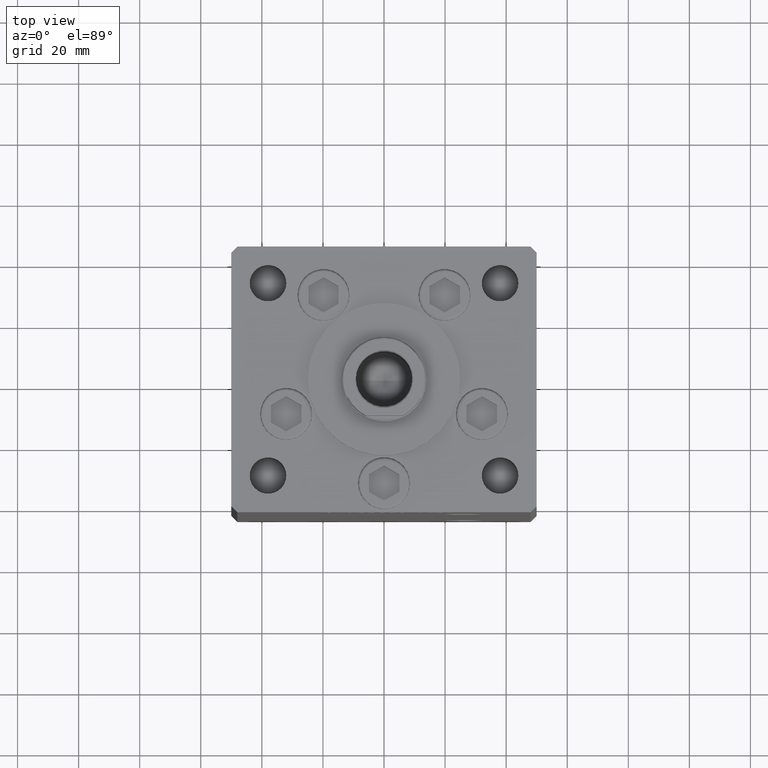
[diagram: clean part render]
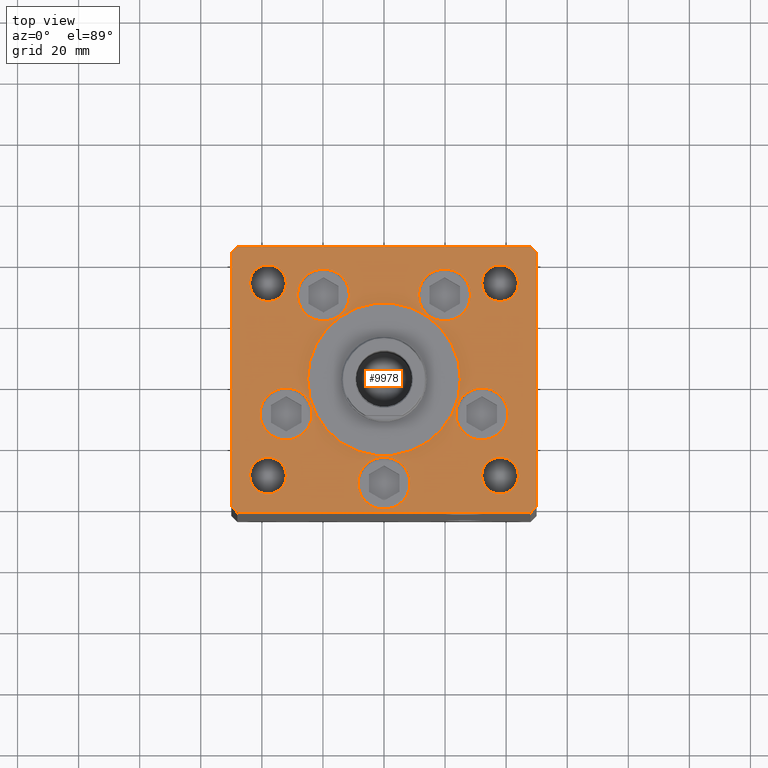
[diagram: same view with one face highlighted and labeled with its STEP entity id]
A machine part, top view. The second image highlights one B-rep face of the part: STEP entity #9978.
In plain terms, the highlighted planar face has unit normal (0, 0, 1).
Its self-contained STEP definition (entity closure, byte-faithful):
#108 = DIRECTION ( 'NONE',  ( 1.000000000000000000, 0.000000000000000000, 0.000000000000000000 ) ) ;
#701 = EDGE_LOOP ( 'NONE', ( #6994, #16196 ) ) ;
#1276 = CIRCLE ( 'NONE', #39207, 8.500000000000000000 ) ;
#1460 = ORIENTED_EDGE ( 'NONE', *, *, #31414, .F. ) ;
#2448 = ORIENTED_EDGE ( 'NONE', *, *, #37866, .T. ) ;
#2465 = FACE_BOUND ( 'NONE', #11517, .T. ) ;
#2912 = VERTEX_POINT ( 'NONE', #38061 ) ;
#2942 = ORIENTED_EDGE ( 'NONE', *, *, #5826, .T. ) ;
#3421 = CARTESIAN_POINT ( 'NONE',  ( 50.00000000000000000, 41.50000000000000711, 0.000000000000000000 ) ) ;
#3626 = CIRCLE ( 'NONE', #35651, 6.000000000000005329 ) ;
#4024 = CIRCLE ( 'NONE', #29332, 8.500000000000000000 ) ;
#4028 = DIRECTION ( 'NONE',  ( -0.000000000000000000, 0.000000000000000000, 1.000000000000000000 ) ) ;
#4533 = DIRECTION ( 'NONE',  ( -0.000000000000000000, -0.000000000000000000, -1.000000000000000000 ) ) ;
#4743 = DIRECTION ( 'NONE',  ( 1.000000000000000000, 0.000000000000000000, 0.000000000000000000 ) ) ;
#5074 = VECTOR ( 'NONE', #52048, 1000.000000000000114 ) ;
#5372 = ORIENTED_EDGE ( 'NONE', *, *, #44791, .F. ) ;
#5439 = CIRCLE ( 'NONE', #25660, 8.500000000000000000 ) ;
#5826 = EDGE_CURVE ( 'NONE', #22163, #49235, #34421, .T. ) ;
#5930 = AXIS2_PLACEMENT_3D ( 'NONE', #32011, #4028, #19857 ) ;
#6026 = CARTESIAN_POINT ( 'NONE',  ( -38.00000000000000000, 31.50000000000000000, 0.000000000000000000 ) ) ;
#6219 = CIRCLE ( 'NONE', #50067, 5.999999999999998224 ) ;
#6373 = ORIENTED_EDGE ( 'NONE', *, *, #9799, .T. ) ;
#6400 = FACE_BOUND ( 'NONE', #19240, .T. ) ;
#6436 = CARTESIAN_POINT ( 'NONE',  ( 32.00000000000000000, -31.50000000000000711, 0.000000000000000000 ) ) ;
#6474 = DIRECTION ( 'NONE',  ( 0.000000000000000000, 0.000000000000000000, 1.000000000000000000 ) ) ;
#6530 = CARTESIAN_POINT ( 'NONE',  ( 44.00000000000001421, -31.50000000000000711, 0.000000000000000000 ) ) ;
#6722 = EDGE_CURVE ( 'NONE', #13387, #8736, #42908, .T. ) ;
#6925 = FACE_BOUND ( 'NONE', #9678, .T. ) ;
#6994 = ORIENTED_EDGE ( 'NONE', *, *, #25311, .F. ) ;
#7424 = CIRCLE ( 'NONE', #37761, 8.500000000000000000 ) ;
#7637 = EDGE_CURVE ( 'NONE', #28035, #17375, #22705, .T. ) ;
#7825 = VECTOR ( 'NONE', #29439, 1000.000000000000000 ) ;
#8310 = CARTESIAN_POINT ( 'NONE',  ( -50.00000000000000711, 41.49999999999999289, 0.000000000000000000 ) ) ;
#8346 = EDGE_LOOP ( 'NONE', ( #40717, #22495 ) ) ;
#8496 = ORIENTED_EDGE ( 'NONE', *, *, #14651, .F. ) ;
#8568 = CARTESIAN_POINT ( 'NONE',  ( 0.000000000000000000, -6.938893903907228378E-15, 0.000000000000000000 ) ) ;
#8736 = VERTEX_POINT ( 'NONE', #36928 ) ;
#9074 = DIRECTION ( 'NONE',  ( 1.000000000000000000, 0.000000000000000000, 0.000000000000000000 ) ) ;
#9678 = EDGE_LOOP ( 'NONE', ( #6373, #38313 ) ) ;
#9772 = LINE ( 'NONE', #17449, #11536 ) ;
#9799 = EDGE_CURVE ( 'NONE', #32856, #36629, #42174, .T. ) ;
#9826 = EDGE_CURVE ( 'NONE', #11920, #26307, #28701, .T. ) ;
#9914 = DIRECTION ( 'NONE',  ( 0.7071067811865487940, -0.7071067811865463515, 0.000000000000000000 ) ) ;
#9963 = DIRECTION ( 'NONE',  ( 1.000000000000000000, 0.000000000000000000, 0.000000000000000000 ) ) ;
#9978 = ADVANCED_FACE ( 'NONE', ( #6400, #26204, #42309, #22511, #2465, #34665, #6925, #47557, #14849, #43880, #19067 ), #19589, .T. ) ;
#10143 = VERTEX_POINT ( 'NONE', #21655 ) ;
#10398 = CARTESIAN_POINT ( 'NONE',  ( 38.00000000000000000, 31.50000000000000000, 0.000000000000000000 ) ) ;
#10760 = EDGE_CURVE ( 'NONE', #37668, #37167, #31488, .T. ) ;
#10815 = CARTESIAN_POINT ( 'NONE',  ( -44.00000000000000000, 31.50000000000000000, 0.000000000000000000 ) ) ;
#11062 = VERTEX_POINT ( 'NONE', #23752 ) ;
#11092 = CARTESIAN_POINT ( 'NONE',  ( -50.00000000000000000, -41.50000000000004263, 0.000000000000000000 ) ) ;
#11199 = VERTEX_POINT ( 'NONE', #36174 ) ;
#11229 = EDGE_CURVE ( 'NONE', #11261, #11199, #50636, .T. ) ;
#11261 = VERTEX_POINT ( 'NONE', #25058 ) ;
#11371 = ORIENTED_EDGE ( 'NONE', *, *, #29478, .T. ) ;
#11517 = EDGE_LOOP ( 'NONE', ( #21766, #23364 ) ) ;
#11536 = VECTOR ( 'NONE', #45169, 1000.000000000000000 ) ;
#11645 = AXIS2_PLACEMENT_3D ( 'NONE', #50107, #46936, #42988 ) ;
#11920 = VERTEX_POINT ( 'NONE', #35809 ) ;
#12499 = CARTESIAN_POINT ( 'NONE',  ( 40.55550741379015989, -11.33333333333332860, 0.000000000000000000 ) ) ;
#12968 = ORIENTED_EDGE ( 'NONE', *, *, #10760, .T. ) ;
#13387 = VERTEX_POINT ( 'NONE', #48866 ) ;
#13474 = DIRECTION ( 'NONE',  ( -1.000000000000000000, 0.000000000000000000, 0.000000000000000000 ) ) ;
#13576 = DIRECTION ( 'NONE',  ( 0.000000000000000000, 0.000000000000000000, 1.000000000000000000 ) ) ;
#13808 = AXIS2_PLACEMENT_3D ( 'NONE', #29530, #45879, #4743 ) ;
#13876 = EDGE_CURVE ( 'NONE', #11199, #11261, #16296, .T. ) ;
#13915 = EDGE_CURVE ( 'NONE', #44710, #48900, #43253, .T. ) ;
#13941 = AXIS2_PLACEMENT_3D ( 'NONE', #6026, #22128, #38236 ) ;
#14559 = ORIENTED_EDGE ( 'NONE', *, *, #28138, .F. ) ;
#14585 = ORIENTED_EDGE ( 'NONE', *, *, #29670, .F. ) ;
#14651 = EDGE_CURVE ( 'NONE', #26307, #11920, #3626, .T. ) ;
#14699 = ORIENTED_EDGE ( 'NONE', *, *, #22379, .F. ) ;
#14849 = FACE_BOUND ( 'NONE', #37100, .T. ) ;
#15021 = EDGE_LOOP ( 'NONE', ( #5372, #14699 ) ) ;
#15093 = VECTOR ( 'NONE', #19087, 1000.000000000000000 ) ;
#15204 = AXIS2_PLACEMENT_3D ( 'NONE', #24920, #32594, #45239 ) ;
#15362 = EDGE_CURVE ( 'NONE', #15480, #11062, #43965, .T. ) ;
#15443 = CARTESIAN_POINT ( 'NONE',  ( 50.00000000000000000, -41.49999999999992895, 0.000000000000000000 ) ) ;
#15480 = VERTEX_POINT ( 'NONE', #41222 ) ;
#15588 = DIRECTION ( 'NONE',  ( 1.000000000000000000, 0.000000000000000000, 0.000000000000000000 ) ) ;
#16196 = ORIENTED_EDGE ( 'NONE', *, *, #37965, .F. ) ;
#16296 = CIRCLE ( 'NONE', #51637, 25.00000000000000000 ) ;
#16494 = DIRECTION ( 'NONE',  ( -0.000000000000000000, -0.000000000000000000, -1.000000000000000000 ) ) ;
#17016 = DIRECTION ( 'NONE',  ( -1.000000000000000000, 0.000000000000000000, 0.000000000000000000 ) ) ;
#17038 = DIRECTION ( 'NONE',  ( 1.000000000000000000, 0.000000000000000000, 0.000000000000000000 ) ) ;
#17375 = VERTEX_POINT ( 'NONE', #34447 ) ;
#17449 = CARTESIAN_POINT ( 'NONE',  ( 50.00000000000000000, -41.49999999999992895, 0.000000000000000000 ) ) ;
#17683 = CARTESIAN_POINT ( 'NONE',  ( 38.00000000000000000, 31.50000000000000000, 0.000000000000000000 ) ) ;
#17973 = ORIENTED_EDGE ( 'NONE', *, *, #19992, .T. ) ;
#18076 = LINE ( 'NONE', #49224, #7825 ) ;
#19013 = DIRECTION ( 'NONE',  ( 0.000000000000000000, 0.000000000000000000, 1.000000000000000000 ) ) ;
#19067 = FACE_BOUND ( 'NONE', #8346, .T. ) ;
#19087 = DIRECTION ( 'NONE',  ( 8.360113137237620037E-17, -1.000000000000000000, 0.000000000000000000 ) ) ;
#19106 = DIRECTION ( 'NONE',  ( 0.000000000000000000, 0.000000000000000000, 1.000000000000000000 ) ) ;
#19240 = EDGE_LOOP ( 'NONE', ( #46581, #33663 ) ) ;
#19387 = CARTESIAN_POINT ( 'NONE',  ( -8.500000000000000000, -34.00000000000000000, 0.000000000000000000 ) ) ;
#19513 = DIRECTION ( 'NONE',  ( -0.7071067811865512365, 0.7071067811865439090, 0.000000000000000000 ) ) ;
#19589 = PLANE ( 'NONE',  #5930 ) ;
#19604 = CIRCLE ( 'NONE', #22117, 6.000000000000005329 ) ;
#19857 = DIRECTION ( 'NONE',  ( 1.000000000000000000, 0.000000000000000000, 0.000000000000000000 ) ) ;
#19992 = EDGE_CURVE ( 'NONE', #20252, #22163, #18076, .T. ) ;
#20252 = VERTEX_POINT ( 'NONE', #42024 ) ;
#20563 = LINE ( 'NONE', #3421, #40857 ) ;
#20710 = AXIS2_PLACEMENT_3D ( 'NONE', #28644, #36053, #28124 ) ;
#20822 = VERTEX_POINT ( 'NONE', #19387 ) ;
#21041 = DIRECTION ( 'NONE',  ( 1.000000000000000000, 0.000000000000000000, 0.000000000000000000 ) ) ;
#21291 = DIRECTION ( 'NONE',  ( 0.000000000000000000, 0.000000000000000000, 1.000000000000000000 ) ) ;
#21655 = CARTESIAN_POINT ( 'NONE',  ( 50.00000000000000000, 41.50000000000000711, 0.000000000000000000 ) ) ;
#21698 = CARTESIAN_POINT ( 'NONE',  ( 47.99999999999999289, 43.50000000000000000, 0.000000000000000000 ) ) ;
#21766 = ORIENTED_EDGE ( 'NONE', *, *, #50801, .F. ) ;
#21896 = EDGE_LOOP ( 'NONE', ( #41309, #14585 ) ) ;
#21903 = EDGE_CURVE ( 'NONE', #2912, #37668, #49508, .T. ) ;
#21940 = AXIS2_PLACEMENT_3D ( 'NONE', #33365, #37325, #41278 ) ;
#22059 = CARTESIAN_POINT ( 'NONE',  ( -50.00000000000000000, -41.50000000000004263, 0.000000000000000000 ) ) ;
#22117 = AXIS2_PLACEMENT_3D ( 'NONE', #25354, #4533, #13474 ) ;
#22128 = DIRECTION ( 'NONE',  ( -0.000000000000000000, -0.000000000000000000, -1.000000000000000000 ) ) ;
#22163 = VERTEX_POINT ( 'NONE', #8310 ) ;
#22321 = LINE ( 'NONE', #47375, #24207 ) ;
#22341 = CARTESIAN_POINT ( 'NONE',  ( -32.00000000000000000, -31.50000000000000711, 0.000000000000000000 ) ) ;
#22379 = EDGE_CURVE ( 'NONE', #39570, #38974, #50031, .T. ) ;
#22495 = ORIENTED_EDGE ( 'NONE', *, *, #13915, .T. ) ;
#22511 = FACE_BOUND ( 'NONE', #701, .T. ) ;
#22705 = CIRCLE ( 'NONE', #42938, 5.999999999999998224 ) ;
#23364 = ORIENTED_EDGE ( 'NONE', *, *, #43796, .F. ) ;
#23513 = ORIENTED_EDGE ( 'NONE', *, *, #9826, .F. ) ;
#23720 = AXIS2_PLACEMENT_3D ( 'NONE', #47566, #27519, #43626 ) ;
#23752 = CARTESIAN_POINT ( 'NONE',  ( -40.55550741379015989, -11.33333333333332682, 0.000000000000000000 ) ) ;
#23940 = EDGE_CURVE ( 'NONE', #48900, #44710, #19604, .T. ) ;
#24207 = VECTOR ( 'NONE', #35257, 1000.000000000000000 ) ;
#24692 = AXIS2_PLACEMENT_3D ( 'NONE', #36821, #16494, #17016 ) ;
#24920 = CARTESIAN_POINT ( 'NONE',  ( -38.00000000000000000, 31.50000000000000000, 0.000000000000000000 ) ) ;
#25058 = CARTESIAN_POINT ( 'NONE',  ( -25.00000000000000000, -6.938893903907228378E-15, 0.000000000000000000 ) ) ;
#25071 = VECTOR ( 'NONE', #9914, 1000.000000000000000 ) ;
#25155 = ORIENTED_EDGE ( 'NONE', *, *, #15362, .F. ) ;
#25311 = EDGE_CURVE ( 'NONE', #35203, #29141, #28928, .T. ) ;
#25354 = CARTESIAN_POINT ( 'NONE',  ( 38.00000000000000711, -31.50000000000000711, 0.000000000000000000 ) ) ;
#25660 = AXIS2_PLACEMENT_3D ( 'NONE', #36939, #30562, #9963 ) ;
#26204 = FACE_BOUND ( 'NONE', #21896, .T. ) ;
#26307 = VERTEX_POINT ( 'NONE', #22341 ) ;
#26498 = DIRECTION ( 'NONE',  ( 1.000000000000000000, 0.000000000000000000, 0.000000000000000000 ) ) ;
#26934 = DIRECTION ( 'NONE',  ( 1.000000000000000000, 0.000000000000000000, 0.000000000000000000 ) ) ;
#26970 = ORIENTED_EDGE ( 'NONE', *, *, #21903, .T. ) ;
#27465 = CARTESIAN_POINT ( 'NONE',  ( -32.00000000000000000, 31.50000000000000000, 0.000000000000000000 ) ) ;
#27519 = DIRECTION ( 'NONE',  ( 0.000000000000000000, 0.000000000000000000, 1.000000000000000000 ) ) ;
#27715 = CARTESIAN_POINT ( 'NONE',  ( 0.000000000000000000, -6.938893903907228378E-15, 0.000000000000000000 ) ) ;
#28035 = VERTEX_POINT ( 'NONE', #45274 ) ;
#28124 = DIRECTION ( 'NONE',  ( 1.000000000000000000, 0.000000000000000000, 0.000000000000000000 ) ) ;
#28138 = EDGE_CURVE ( 'NONE', #17375, #28035, #6219, .T. ) ;
#28644 = CARTESIAN_POINT ( 'NONE',  ( -32.05550741379015989, -11.33333333333332860, 0.000000000000000000 ) ) ;
#28701 = CIRCLE ( 'NONE', #21940, 6.000000000000005329 ) ;
#28804 = ORIENTED_EDGE ( 'NONE', *, *, #41982, .T. ) ;
#28928 = CIRCLE ( 'NONE', #49136, 8.500000000000000000 ) ;
#29141 = VERTEX_POINT ( 'NONE', #29833 ) ;
#29332 = AXIS2_PLACEMENT_3D ( 'NONE', #42383, #6474, #30776 ) ;
#29401 = DIRECTION ( 'NONE',  ( 0.000000000000000000, 0.000000000000000000, 1.000000000000000000 ) ) ;
#29439 = DIRECTION ( 'NONE',  ( -0.7071067811865536790, -0.7071067811865414665, 0.000000000000000000 ) ) ;
#29478 = EDGE_CURVE ( 'NONE', #10143, #35301, #20563, .T. ) ;
#29530 = CARTESIAN_POINT ( 'NONE',  ( 19.82068048781374969, 27.62499999999998934, 0.000000000000000000 ) ) ;
#29670 = EDGE_CURVE ( 'NONE', #8736, #13387, #5439, .T. ) ;
#29833 = CARTESIAN_POINT ( 'NONE',  ( 23.55550741379015633, -11.33333333333332682, 0.000000000000000000 ) ) ;
#30127 = CARTESIAN_POINT ( 'NONE',  ( 11.32068048781375147, 27.62499999999998934, 0.000000000000000000 ) ) ;
#30562 = DIRECTION ( 'NONE',  ( 0.000000000000000000, 0.000000000000000000, 1.000000000000000000 ) ) ;
#30776 = DIRECTION ( 'NONE',  ( 1.000000000000000000, 0.000000000000000000, 0.000000000000000000 ) ) ;
#31066 = EDGE_LOOP ( 'NONE', ( #41502, #14559 ) ) ;
#31239 = CARTESIAN_POINT ( 'NONE',  ( -50.00000000000000711, 41.49999999999999289, 0.000000000000000000 ) ) ;
#31387 = VERTEX_POINT ( 'NONE', #46861 ) ;
#31414 = EDGE_CURVE ( 'NONE', #11062, #15480, #39231, .T. ) ;
#31488 = LINE ( 'NONE', #39395, #5074 ) ;
#31926 = EDGE_LOOP ( 'NONE', ( #25155, #1460 ) ) ;
#32011 = CARTESIAN_POINT ( 'NONE',  ( 0.000000000000000000, 0.000000000000000000, 0.000000000000000000 ) ) ;
#32238 = EDGE_CURVE ( 'NONE', #36629, #32856, #37545, .T. ) ;
#32594 = DIRECTION ( 'NONE',  ( -0.000000000000000000, -0.000000000000000000, -1.000000000000000000 ) ) ;
#32659 = CARTESIAN_POINT ( 'NONE',  ( -48.00000000000000711, -43.50000000000002842, 0.000000000000000000 ) ) ;
#32856 = VERTEX_POINT ( 'NONE', #27465 ) ;
#33172 = DIRECTION ( 'NONE',  ( 1.000000000000000000, 1.156482317317871331E-15, 0.000000000000000000 ) ) ;
#33365 = CARTESIAN_POINT ( 'NONE',  ( -38.00000000000000711, -31.50000000000000711, 0.000000000000000000 ) ) ;
#33481 = EDGE_LOOP ( 'NONE', ( #2448, #26970, #12968, #35687, #11371, #28804, #17973, #2942 ) ) ;
#33663 = ORIENTED_EDGE ( 'NONE', *, *, #13876, .F. ) ;
#33776 = DIRECTION ( 'NONE',  ( 0.000000000000000000, 0.000000000000000000, 1.000000000000000000 ) ) ;
#34421 = LINE ( 'NONE', #31239, #15093 ) ;
#34447 = CARTESIAN_POINT ( 'NONE',  ( 32.00000000000000000, 31.50000000000000000, 0.000000000000000000 ) ) ;
#34665 = FACE_BOUND ( 'NONE', #31926, .T. ) ;
#35203 = VERTEX_POINT ( 'NONE', #12499 ) ;
#35257 = DIRECTION ( 'NONE',  ( -1.000000000000000000, -2.891205793294678326E-16, 0.000000000000000000 ) ) ;
#35301 = VERTEX_POINT ( 'NONE', #21698 ) ;
#35651 = AXIS2_PLACEMENT_3D ( 'NONE', #51459, #19013, #39331 ) ;
#35656 = CARTESIAN_POINT ( 'NONE',  ( -19.82068048781374969, 27.62499999999998934, 0.000000000000000000 ) ) ;
#35687 = ORIENTED_EDGE ( 'NONE', *, *, #36543, .T. ) ;
#35737 = DIRECTION ( 'NONE',  ( 0.000000000000000000, 0.000000000000000000, 1.000000000000000000 ) ) ;
#35809 = CARTESIAN_POINT ( 'NONE',  ( -44.00000000000001421, -31.50000000000000711, 0.000000000000000000 ) ) ;
#36007 = CARTESIAN_POINT ( 'NONE',  ( 19.82068048781374969, 27.62499999999998934, 0.000000000000000000 ) ) ;
#36053 = DIRECTION ( 'NONE',  ( 0.000000000000000000, 0.000000000000000000, 1.000000000000000000 ) ) ;
#36174 = CARTESIAN_POINT ( 'NONE',  ( 25.00000000000000000, -3.877276906038844941E-15, 0.000000000000000000 ) ) ;
#36176 = CARTESIAN_POINT ( 'NONE',  ( 28.32068048781375325, 27.62499999999998934, 0.000000000000000000 ) ) ;
#36543 = EDGE_CURVE ( 'NONE', #37167, #10143, #9772, .T. ) ;
#36629 = VERTEX_POINT ( 'NONE', #10815 ) ;
#36821 = CARTESIAN_POINT ( 'NONE',  ( 38.00000000000000711, -31.50000000000000711, 0.000000000000000000 ) ) ;
#36928 = CARTESIAN_POINT ( 'NONE',  ( -28.32068048781375325, 27.62499999999998934, 0.000000000000000000 ) ) ;
#36939 = CARTESIAN_POINT ( 'NONE',  ( -19.82068048781374969, 27.62499999999998934, 0.000000000000000000 ) ) ;
#37100 = EDGE_LOOP ( 'NONE', ( #8496, #23513 ) ) ;
#37167 = VERTEX_POINT ( 'NONE', #15443 ) ;
#37325 = DIRECTION ( 'NONE',  ( 0.000000000000000000, 0.000000000000000000, 1.000000000000000000 ) ) ;
#37483 = DIRECTION ( 'NONE',  ( 1.000000000000000000, 0.000000000000000000, 0.000000000000000000 ) ) ;
#37545 = CIRCLE ( 'NONE', #13941, 5.999999999999998224 ) ;
#37668 = VERTEX_POINT ( 'NONE', #50083 ) ;
#37761 = AXIS2_PLACEMENT_3D ( 'NONE', #36007, #35737, #108 ) ;
#37866 = EDGE_CURVE ( 'NONE', #49235, #2912, #45310, .T. ) ;
#37965 = EDGE_CURVE ( 'NONE', #29141, #35203, #4024, .T. ) ;
#38061 = CARTESIAN_POINT ( 'NONE',  ( -48.00000000000000711, -43.50000000000002842, 0.000000000000000000 ) ) ;
#38236 = DIRECTION ( 'NONE',  ( -1.000000000000000000, 0.000000000000000000, 0.000000000000000000 ) ) ;
#38313 = ORIENTED_EDGE ( 'NONE', *, *, #32238, .T. ) ;
#38825 = AXIS2_PLACEMENT_3D ( 'NONE', #27715, #43820, #26934 ) ;
#38974 = VERTEX_POINT ( 'NONE', #36176 ) ;
#39207 = AXIS2_PLACEMENT_3D ( 'NONE', #49726, #13576, #17038 ) ;
#39231 = CIRCLE ( 'NONE', #20710, 8.500000000000000000 ) ;
#39331 = DIRECTION ( 'NONE',  ( 1.000000000000000000, 0.000000000000000000, 0.000000000000000000 ) ) ;
#39395 = CARTESIAN_POINT ( 'NONE',  ( 48.00000000000000711, -43.49999999999992184, 0.000000000000000000 ) ) ;
#39570 = VERTEX_POINT ( 'NONE', #30127 ) ;
#40380 = AXIS2_PLACEMENT_3D ( 'NONE', #35656, #51730, #15588 ) ;
#40717 = ORIENTED_EDGE ( 'NONE', *, *, #23940, .T. ) ;
#40857 = VECTOR ( 'NONE', #19513, 999.9999999999998863 ) ;
#41222 = CARTESIAN_POINT ( 'NONE',  ( -23.55550741379015989, -11.33333333333332860, 0.000000000000000000 ) ) ;
#41278 = DIRECTION ( 'NONE',  ( 1.000000000000000000, 0.000000000000000000, 0.000000000000000000 ) ) ;
#41309 = ORIENTED_EDGE ( 'NONE', *, *, #6722, .F. ) ;
#41360 = CARTESIAN_POINT ( 'NONE',  ( 32.05550741379015989, -11.33333333333332860, 0.000000000000000000 ) ) ;
#41502 = ORIENTED_EDGE ( 'NONE', *, *, #7637, .F. ) ;
#41982 = EDGE_CURVE ( 'NONE', #35301, #20252, #22321, .T. ) ;
#42024 = CARTESIAN_POINT ( 'NONE',  ( -48.00000000000000000, 43.49999999999997158, 0.000000000000000000 ) ) ;
#42174 = CIRCLE ( 'NONE', #15204, 5.999999999999998224 ) ;
#42309 = FACE_BOUND ( 'NONE', #15021, .T. ) ;
#42383 = CARTESIAN_POINT ( 'NONE',  ( 32.05550741379015989, -11.33333333333332860, 0.000000000000000000 ) ) ;
#42807 = CIRCLE ( 'NONE', #11645, 8.500000000000000000 ) ;
#42908 = CIRCLE ( 'NONE', #40380, 8.500000000000000000 ) ;
#42938 = AXIS2_PLACEMENT_3D ( 'NONE', #17683, #33776, #37483 ) ;
#42988 = DIRECTION ( 'NONE',  ( 1.000000000000000000, 0.000000000000000000, 0.000000000000000000 ) ) ;
#43253 = CIRCLE ( 'NONE', #24692, 6.000000000000005329 ) ;
#43626 = DIRECTION ( 'NONE',  ( 1.000000000000000000, 0.000000000000000000, 0.000000000000000000 ) ) ;
#43796 = EDGE_CURVE ( 'NONE', #20822, #31387, #42807, .T. ) ;
#43820 = DIRECTION ( 'NONE',  ( 0.000000000000000000, 0.000000000000000000, 1.000000000000000000 ) ) ;
#43880 = FACE_OUTER_BOUND ( 'NONE', #33481, .T. ) ;
#43965 = CIRCLE ( 'NONE', #23720, 8.500000000000000000 ) ;
#44710 = VERTEX_POINT ( 'NONE', #6436 ) ;
#44791 = EDGE_CURVE ( 'NONE', #38974, #39570, #7424, .T. ) ;
#45169 = DIRECTION ( 'NONE',  ( 0.000000000000000000, 1.000000000000000000, 0.000000000000000000 ) ) ;
#45239 = DIRECTION ( 'NONE',  ( -1.000000000000000000, 0.000000000000000000, 0.000000000000000000 ) ) ;
#45274 = CARTESIAN_POINT ( 'NONE',  ( 44.00000000000000000, 31.50000000000000000, 0.000000000000000000 ) ) ;
#45310 = LINE ( 'NONE', #22059, #25071 ) ;
#45828 = VECTOR ( 'NONE', #33172, 1000.000000000000000 ) ;
#45879 = DIRECTION ( 'NONE',  ( 0.000000000000000000, 0.000000000000000000, 1.000000000000000000 ) ) ;
#46581 = ORIENTED_EDGE ( 'NONE', *, *, #11229, .F. ) ;
#46861 = CARTESIAN_POINT ( 'NONE',  ( 8.500000000000000000, -34.00000000000000000, 0.000000000000000000 ) ) ;
#46936 = DIRECTION ( 'NONE',  ( 0.000000000000000000, 0.000000000000000000, 1.000000000000000000 ) ) ;
#47375 = CARTESIAN_POINT ( 'NONE',  ( 47.99999999999999289, 43.50000000000000000, 0.000000000000000000 ) ) ;
#47557 = FACE_BOUND ( 'NONE', #31066, .T. ) ;
#47566 = CARTESIAN_POINT ( 'NONE',  ( -32.05550741379015989, -11.33333333333332860, 0.000000000000000000 ) ) ;
#48866 = CARTESIAN_POINT ( 'NONE',  ( -11.32068048781375147, 27.62499999999998934, 0.000000000000000000 ) ) ;
#48900 = VERTEX_POINT ( 'NONE', #6530 ) ;
#49136 = AXIS2_PLACEMENT_3D ( 'NONE', #41360, #21291, #21041 ) ;
#49224 = CARTESIAN_POINT ( 'NONE',  ( -48.00000000000000000, 43.49999999999997158, 0.000000000000000000 ) ) ;
#49235 = VERTEX_POINT ( 'NONE', #11092 ) ;
#49508 = LINE ( 'NONE', #32659, #45828 ) ;
#49726 = CARTESIAN_POINT ( 'NONE',  ( 0.000000000000000000, -34.00000000000000000, 0.000000000000000000 ) ) ;
#50031 = CIRCLE ( 'NONE', #13808, 8.500000000000000000 ) ;
#50067 = AXIS2_PLACEMENT_3D ( 'NONE', #10398, #19106, #26498 ) ;
#50083 = CARTESIAN_POINT ( 'NONE',  ( 48.00000000000000711, -43.49999999999992184, 0.000000000000000000 ) ) ;
#50107 = CARTESIAN_POINT ( 'NONE',  ( 0.000000000000000000, -34.00000000000000000, 0.000000000000000000 ) ) ;
#50636 = CIRCLE ( 'NONE', #38825, 25.00000000000000000 ) ;
#50801 = EDGE_CURVE ( 'NONE', #31387, #20822, #1276, .T. ) ;
#51459 = CARTESIAN_POINT ( 'NONE',  ( -38.00000000000000711, -31.50000000000000711, 0.000000000000000000 ) ) ;
#51637 = AXIS2_PLACEMENT_3D ( 'NONE', #8568, #29401, #9074 ) ;
#51730 = DIRECTION ( 'NONE',  ( 0.000000000000000000, 0.000000000000000000, 1.000000000000000000 ) ) ;
#52048 = DIRECTION ( 'NONE',  ( 0.7071067811865474617, 0.7071067811865474617, 0.000000000000000000 ) ) ;